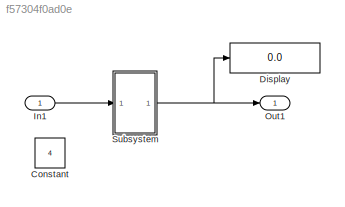
MODEL slx_f57304f0ad0e
KIND model
CONFIG AbsTol = auto
CONFIG EnableMultiTasking = off
CONFIG FixedStep = auto
CONFIG MaxStep = auto
CONFIG MinStep = auto
CONFIG RelTol = 1e-3
CONFIG SampleTimeConstraint = Unconstrained
CONFIG SolverName = VariableStepAuto
CONFIG StartTime = 0.0
CONFIG StopTime = 10.0
BLOCK [Constant] Constant
  OutDataTypeStr = uint8
  Value = 4
BLOCK [Display] Display
  Decimation = 1
  Ports = [1]
BLOCK [Inport] In1
  OutDataTypeStr = uint8
BLOCK [Outport] Out1
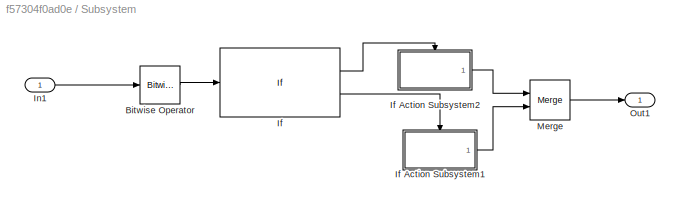
BLOCK [SubSystem] Subsystem
  Ports = [1, 1]
  RequestExecContextInheritance = off
BLOCK [Reference] Subsystem/Bitwise Operator  REF=simulink/Logic and Bit
Operations/Bitwise
Operator
  Ports = [1, 1]
  SourceBlock = simulink/Logic and Bit\nOperations/Bitwise\nOperator
  SourceProductBaseCode = SL
  SourceType = Bitwise Operator
BLOCK [If] Subsystem/If
  IfExpression = u1 == 0
  Ports = [1, 2]
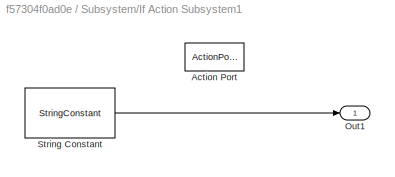
BLOCK [SubSystem] Subsystem/If Action Subsystem1
  Ports = [0, 1, 0, 0, 0, 0, 0, 1]
  RequestExecContextInheritance = off
  TreatAsAtomicUnit = on
BLOCK [ActionPort] Subsystem/If Action Subsystem1/Action Port
  ActionPortLabel = else
BLOCK [Outport] Subsystem/If Action Subsystem1/Out1
BLOCK [StringConstant] Subsystem/If Action Subsystem1/String Constant
  String = "Odd"
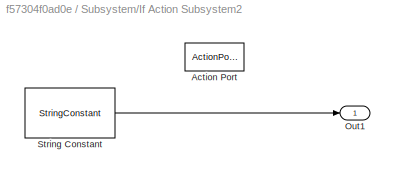
BLOCK [SubSystem] Subsystem/If Action Subsystem2
  Ports = [0, 1, 0, 0, 0, 0, 0, 1]
  RequestExecContextInheritance = off
  TreatAsAtomicUnit = on
BLOCK [ActionPort] Subsystem/If Action Subsystem2/Action Port
  ActionPortLabel = if(u1 == 0)
BLOCK [Outport] Subsystem/If Action Subsystem2/Out1
BLOCK [StringConstant] Subsystem/If Action Subsystem2/String Constant
  String = "Even"
BLOCK [Inport] Subsystem/In1
BLOCK [Merge] Subsystem/Merge
  Ports = [2, 1]
BLOCK [Outport] Subsystem/Out1
LINE In1:1 -> Subsystem:1
LINE Subsystem/Bitwise Operator:1 -> Subsystem/If:1
LINE Subsystem/If Action Subsystem1/String Constant:1 -> Subsystem/If Action Subsystem1/Out1:1
LINE Subsystem/If Action Subsystem1:1 -> Subsystem/Merge:2
LINE Subsystem/If Action Subsystem2/String Constant:1 -> Subsystem/If Action Subsystem2/Out1:1
LINE Subsystem/If Action Subsystem2:1 -> Subsystem/Merge:1
LINE Subsystem/If:1 -> Subsystem/If Action Subsystem2:ifaction
LINE Subsystem/If:2 -> Subsystem/If Action Subsystem1:ifaction
LINE Subsystem/In1:1 -> Subsystem/Bitwise Operator:1
LINE Subsystem/Merge:1 -> Subsystem/Out1:1
NET Subsystem:1 -> Display:1, Out1:1
note: NET lines group one-source signal fan-out (src -> all destinations, sorted); 1:1 wires keep LINE
